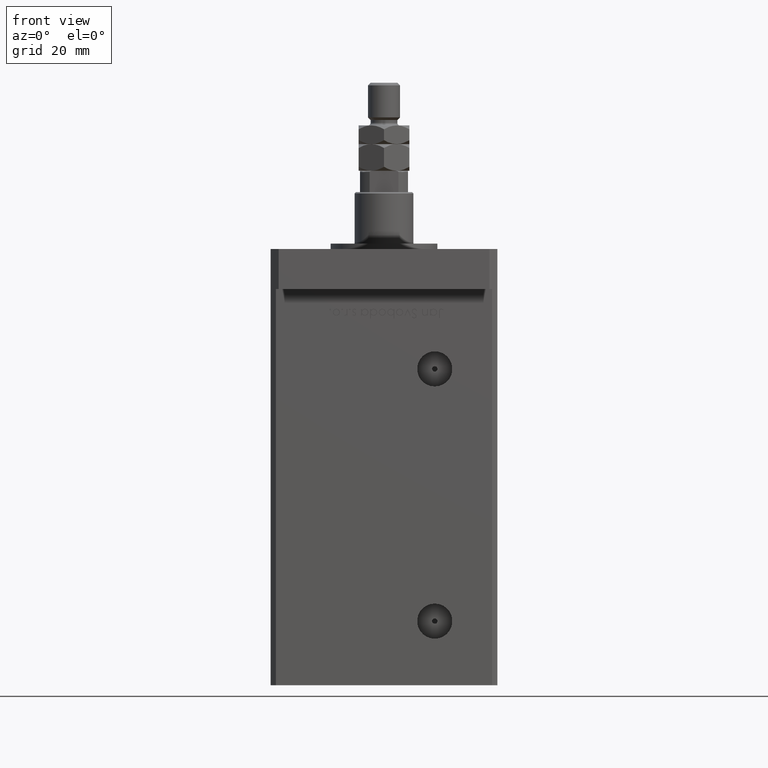
[diagram: clean part render]
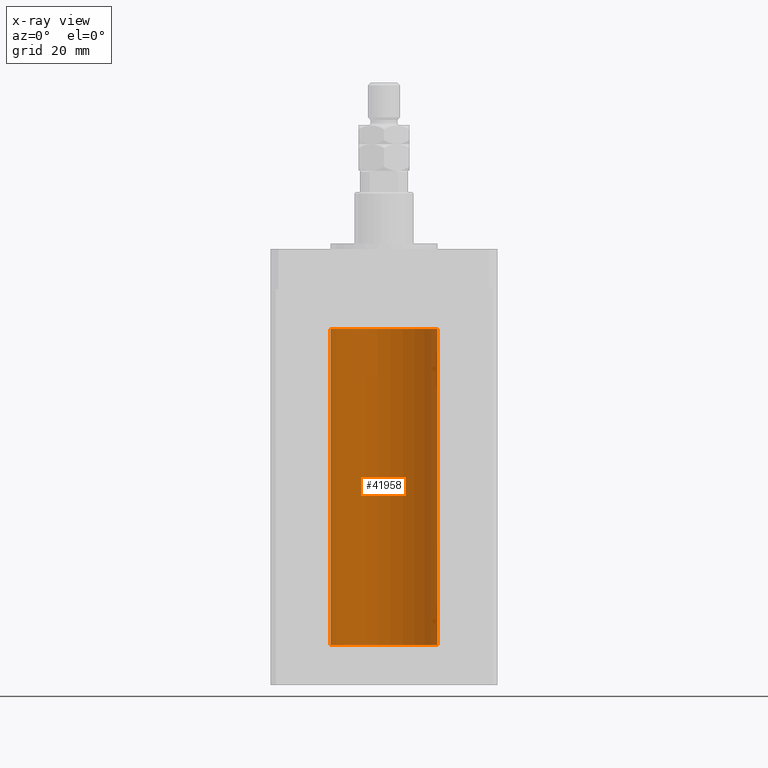
[diagram: x-ray — body ghosted, one internal face saturated and labeled with its STEP entity id]
A machine part, front view, then the same camera in x-ray: the body is ghosted and one INTERNAL B-rep face — a face not visible from any outside direction — is saturated and labeled: STEP entity #41958.
In plain terms, the highlighted cylindrical surface (partial cylindrical patch) has radius 20 mm, axis along (-0, -0, -1).
Its self-contained STEP definition (entity closure, byte-faithful):
#2996 = DIRECTION ( 'NONE',  ( -0.000000000000000000, -0.000000000000000000, -1.000000000000000000 ) ) ;
#5089 = CARTESIAN_POINT ( 'NONE',  ( -20.00000000000000000, 0.000000000000000000, 118.5000000000000000 ) ) ;
#5125 = CARTESIAN_POINT ( 'NONE',  ( 20.00000000000000000, 2.449293598294706513E-15, 118.5000000000000000 ) ) ;
#7058 = DIRECTION ( 'NONE',  ( -0.000000000000000000, -0.000000000000000000, -1.000000000000000000 ) ) ;
#7212 = DIRECTION ( 'NONE',  ( -1.000000000000000000, 0.000000000000000000, 0.000000000000000000 ) ) ;
#11075 = EDGE_CURVE ( 'NONE', #44675, #45275, #46000, .T. ) ;
#12676 = VERTEX_POINT ( 'NONE', #5125 ) ;
#13384 = CARTESIAN_POINT ( 'NONE',  ( 0.000000000000000000, 0.000000000000000000, 118.5000000000000000 ) ) ;
#14902 = CARTESIAN_POINT ( 'NONE',  ( 20.00000000000000000, 2.449293598294706513E-15, 118.5000000000000000 ) ) ;
#19502 = CYLINDRICAL_SURFACE ( 'NONE', #44712, 20.00000000000000000 ) ;
#21731 = DIRECTION ( 'NONE',  ( -0.000000000000000000, 0.000000000000000000, 1.000000000000000000 ) ) ;
#22457 = VERTEX_POINT ( 'NONE', #5089 ) ;
#24185 = VECTOR ( 'NONE', #7058, 1000.000000000000000 ) ;
#24418 = AXIS2_PLACEMENT_3D ( 'NONE', #13384, #39074, #48270 ) ;
#30748 = ORIENTED_EDGE ( 'NONE', *, *, #45945, .F. ) ;
#32357 = CARTESIAN_POINT ( 'NONE',  ( 0.000000000000000000, 0.000000000000000000, 118.5000000000000000 ) ) ;
#32664 = AXIS2_PLACEMENT_3D ( 'NONE', #38217, #21731, #37941 ) ;
#34201 = CIRCLE ( 'NONE', #24418, 20.00000000000000000 ) ;
#35424 = ORIENTED_EDGE ( 'NONE', *, *, #40654, .T. ) ;
#36368 = ORIENTED_EDGE ( 'NONE', *, *, #11075, .F. ) ;
#36513 = CARTESIAN_POINT ( 'NONE',  ( -20.00000000000000000, 0.000000000000000000, 118.5000000000000000 ) ) ;
#36679 = ORIENTED_EDGE ( 'NONE', *, *, #53233, .T. ) ;
#37941 = DIRECTION ( 'NONE',  ( 1.000000000000000000, 0.000000000000000000, 0.000000000000000000 ) ) ;
#38217 = CARTESIAN_POINT ( 'NONE',  ( 0.000000000000000000, 0.000000000000000000, 0.000000000000000000 ) ) ;
#39074 = DIRECTION ( 'NONE',  ( -0.000000000000000000, 0.000000000000000000, 1.000000000000000000 ) ) ;
#40654 = EDGE_CURVE ( 'NONE', #22457, #45275, #40707, .T. ) ;
#40707 = LINE ( 'NONE', #36513, #52014 ) ;
#40899 = CARTESIAN_POINT ( 'NONE',  ( 20.00000000000000000, 2.449293598294706513E-15, 0.000000000000000000 ) ) ;
#41276 = DIRECTION ( 'NONE',  ( -0.000000000000000000, -0.000000000000000000, -1.000000000000000000 ) ) ;
#41958 = ADVANCED_FACE ( 'NONE', ( #53849 ), #19502, .F. ) ;
#44675 = VERTEX_POINT ( 'NONE', #40899 ) ;
#44712 = AXIS2_PLACEMENT_3D ( 'NONE', #32357, #41276, #7212 ) ;
#45275 = VERTEX_POINT ( 'NONE', #51416 ) ;
#45945 = EDGE_CURVE ( 'NONE', #12676, #44675, #53149, .T. ) ;
#46000 = CIRCLE ( 'NONE', #32664, 20.00000000000000000 ) ;
#47521 = EDGE_LOOP ( 'NONE', ( #30748, #36679, #35424, #36368 ) ) ;
#48270 = DIRECTION ( 'NONE',  ( 1.000000000000000000, 0.000000000000000000, 0.000000000000000000 ) ) ;
#51416 = CARTESIAN_POINT ( 'NONE',  ( -20.00000000000000000, 0.000000000000000000, 0.000000000000000000 ) ) ;
#52014 = VECTOR ( 'NONE', #2996, 1000.000000000000000 ) ;
#53149 = LINE ( 'NONE', #14902, #24185 ) ;
#53233 = EDGE_CURVE ( 'NONE', #12676, #22457, #34201, .T. ) ;
#53849 = FACE_OUTER_BOUND ( 'NONE', #47521, .T. ) ;